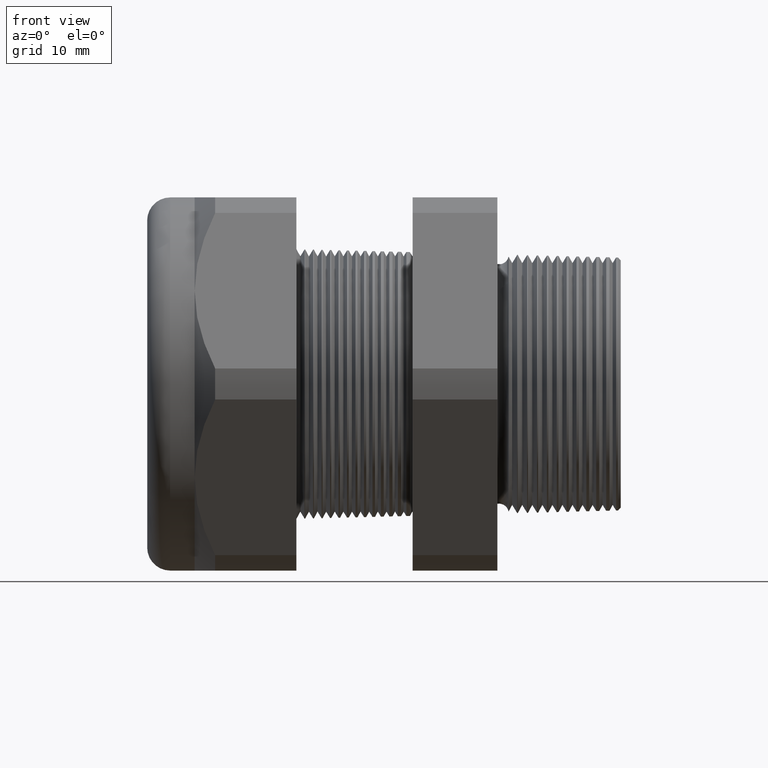
[diagram: clean part render]
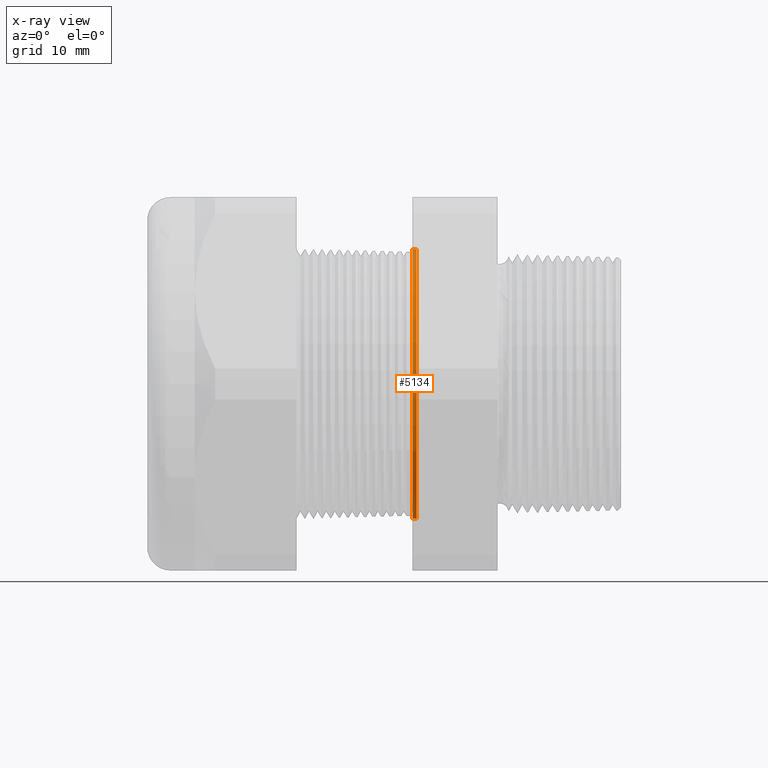
[diagram: x-ray — body ghosted, one internal face saturated and labeled with its STEP entity id]
A machine part, front view, then the same camera in x-ray: the body is ghosted and one INTERNAL B-rep face — a face not visible from any outside direction — is saturated and labeled: STEP entity #5134.
In plain terms, the highlighted conical surface has half-angle 1.5 deg.
Its self-contained STEP definition (entity closure, byte-faithful):
#5 = EDGE_CURVE ( 'NONE', #49, #24, #935, .T. ) ;
#8 = ORIENTED_EDGE ( 'NONE', *, *, #10, .T. ) ;
#10 = EDGE_CURVE ( 'NONE', #37, #24, #979, .T. ) ;
#24 = VERTEX_POINT ( 'NONE', #961 ) ;
#36 = EDGE_CURVE ( 'NONE', #45, #37, #2696, .T. ) ;
#37 = VERTEX_POINT ( 'NONE', #2692 ) ;
#44 = ORIENTED_EDGE ( 'NONE', *, *, #36, .T. ) ;
#45 = VERTEX_POINT ( 'NONE', #2685 ) ;
#49 = VERTEX_POINT ( 'NONE', #2684 ) ;
#928 = DIRECTION ( 'NONE',  ( -0.9996573249755573700, 0.0000000000000000000, 0.02617694830786618600 ) ) ;
#929 = VECTOR ( 'NONE', #928, 39.37007874015748100 ) ;
#930 = CARTESIAN_POINT ( 'NONE',  ( -0.5914573393463203900, 0.0000000000000000000, 0.4692443365923945100 ) ) ;
#935 = LINE ( 'NONE', #930, #929 ) ;
#961 = CARTESIAN_POINT ( 'NONE',  ( -0.6052755905511809600, 0.0000000000000000000, 0.4696061802346682100 ) ) ;
#976 = DIRECTION ( 'NONE',  ( 0.0000000000000000000, 0.0000000000000000000, 1.000000000000000000 ) ) ;
#977 = DIRECTION ( 'NONE',  ( -1.000000000000000000, 0.0000000000000000000, 0.0000000000000000000 ) ) ;
#978 = AXIS2_PLACEMENT_3D ( 'NONE', #983, #977, #976 ) ;
#979 = CIRCLE ( 'NONE', #978, 0.4696061802346682700 ) ;
#983 = CARTESIAN_POINT ( 'NONE',  ( -0.6052755905511809600, 0.0000000000000000000, 0.0000000000000000000 ) ) ;
#1540 = CIRCLE ( 'NONE', #1601, 0.4692443365923945100 ) ;
#1555 = DIRECTION ( 'NONE',  ( 0.0000000000000000000, 0.0000000000000000000, 1.000000000000000000 ) ) ;
#1556 = DIRECTION ( 'NONE',  ( -1.000000000000000000, 0.0000000000000000000, 0.0000000000000000000 ) ) ;
#1557 = CARTESIAN_POINT ( 'NONE',  ( -0.5914573393463203900, 0.0000000000000000000, 0.0000000000000000000 ) ) ;
#1558 = AXIS2_PLACEMENT_3D ( 'NONE', #1557, #1556, #1555 ) ;
#1560 = CONICAL_SURFACE ( 'NONE', #1558, 0.4692443365923945100, 0.02617993877990797800 ) ;
#1561 = FACE_OUTER_BOUND ( 'NONE', #5488, .T. ) ;
#1598 = DIRECTION ( 'NONE',  ( 0.0000000000000000000, 0.0000000000000000000, -1.000000000000000000 ) ) ;
#1599 = DIRECTION ( 'NONE',  ( 1.000000000000000000, 0.0000000000000000000, 0.0000000000000000000 ) ) ;
#1600 = CARTESIAN_POINT ( 'NONE',  ( -0.5914573393463203900, 0.0000000000000000000, 0.0000000000000000000 ) ) ;
#1601 = AXIS2_PLACEMENT_3D ( 'NONE', #1600, #1599, #1598 ) ;
#2684 = CARTESIAN_POINT ( 'NONE',  ( -0.5914573393463203900, 5.746585748258992000E-017, 0.4692443365923945100 ) ) ;
#2685 = CARTESIAN_POINT ( 'NONE',  ( -0.5914573393463203900, 0.0000000000000000000, -0.4692443365923945100 ) ) ;
#2692 = CARTESIAN_POINT ( 'NONE',  ( -0.6052755905511809600, 5.751017054842014700E-017, -0.4696061802346682100 ) ) ;
#2693 = DIRECTION ( 'NONE',  ( -0.9996573249755573700, 3.205751595667405400E-018, -0.02617694830786618600 ) ) ;
#2694 = VECTOR ( 'NONE', #2693, 39.37007874015748100 ) ;
#2695 = CARTESIAN_POINT ( 'NONE',  ( -0.5914573393463203900, 5.746585748258992000E-017, -0.4692443365923945100 ) ) ;
#2696 = LINE ( 'NONE', #2695, #2694 ) ;
#5134 = ADVANCED_FACE ( 'NONE', ( #1561 ), #1560, .F. ) ;
#5147 = EDGE_CURVE ( 'NONE', #49, #45, #1540, .T. ) ;
#5148 = ORIENTED_EDGE ( 'NONE', *, *, #5147, .T. ) ;
#5488 = EDGE_LOOP ( 'NONE', ( #5148, #44, #8, #5505 ) ) ;
#5505 = ORIENTED_EDGE ( 'NONE', *, *, #5, .F. ) ;